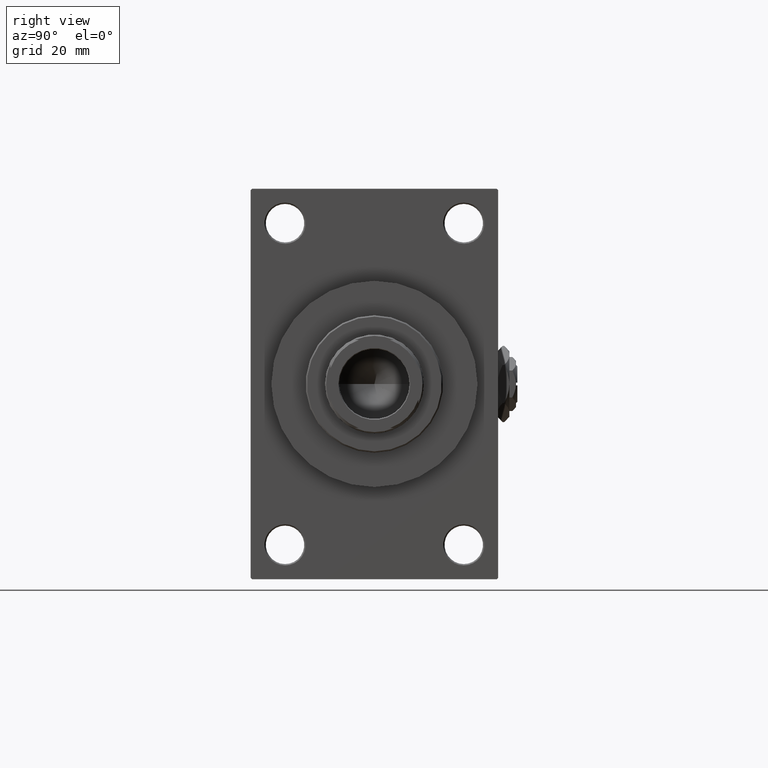
[diagram: clean part render]
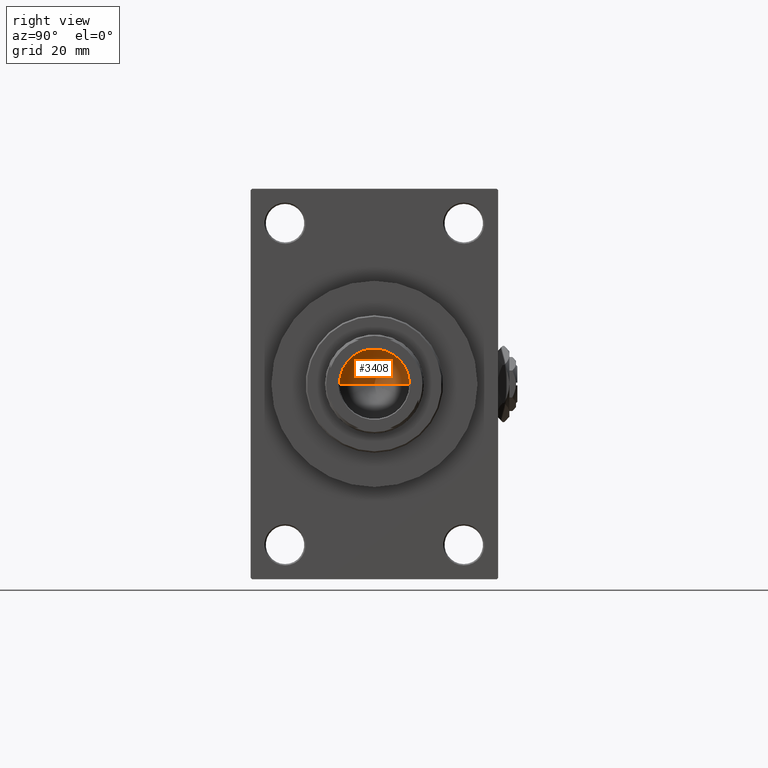
[diagram: same view with one face highlighted and labeled with its STEP entity id]
A machine part, right view. The second image highlights one B-rep face of the part: STEP entity #3408.
In plain terms, the highlighted conical surface has half-angle 59 deg.
Its self-contained STEP definition (entity closure, byte-faithful):
#120 = ORIENTED_EDGE ( 'NONE', *, *, #6463, .F. ) ;
#435 = VERTEX_POINT ( 'NONE', #33786 ) ;
#1939 = AXIS2_PLACEMENT_3D ( 'NONE', #29621, #6858, #17515 ) ;
#2720 = CARTESIAN_POINT ( 'NONE',  ( 0.000000000000000000, 0.000000000000000000, 105.0000000000000284 ) ) ;
#3408 = ADVANCED_FACE ( 'NONE', ( #30179 ), #21475, .F. ) ;
#3911 = CARTESIAN_POINT ( 'NONE',  ( 12.74999999999999112, 0.000000000000000000, 105.0000000000000284 ) ) ;
#6463 = EDGE_CURVE ( 'NONE', #17259, #435, #7882, .T. ) ;
#6858 = DIRECTION ( 'NONE',  ( -0.000000000000000000, -0.000000000000000000, 1.000000000000000000 ) ) ;
#7041 = DIRECTION ( 'NONE',  ( -0.8571673007021117785, 1.049727191138617956E-16, 0.5150380749100550437 ) ) ;
#7882 = LINE ( 'NONE', #3911, #46746 ) ;
#8460 = ORIENTED_EDGE ( 'NONE', *, *, #31413, .T. ) ;
#11103 = EDGE_LOOP ( 'NONE', ( #120, #8460, #20859 ) ) ;
#12044 = CARTESIAN_POINT ( 'NONE',  ( -1.323906893019387300E-14, 0.000000000000000000, 97.33902710739862130 ) ) ;
#15074 = DIRECTION ( 'NONE',  ( 1.000000000000000000, 0.000000000000000000, 0.000000000000000000 ) ) ;
#17259 = VERTEX_POINT ( 'NONE', #12044 ) ;
#17515 = DIRECTION ( 'NONE',  ( 1.000000000000000000, 0.000000000000000000, 0.000000000000000000 ) ) ;
#20859 = ORIENTED_EDGE ( 'NONE', *, *, #40921, .T. ) ;
#21475 = CONICAL_SURFACE ( 'NONE', #33295, 12.74999999999999112, 1.029744258676653423 ) ;
#23277 = CIRCLE ( 'NONE', #1939, 12.74999999999999112 ) ;
#25855 = CARTESIAN_POINT ( 'NONE',  ( -12.74999999999999112, 1.561424668912874125E-15, 105.0000000000000284 ) ) ;
#26908 = VECTOR ( 'NONE', #7041, 1000.000000000000000 ) ;
#26936 = DIRECTION ( 'NONE',  ( 0.8571673007021117785, 0.000000000000000000, 0.5150380749100550437 ) ) ;
#29569 = LINE ( 'NONE', #25855, #26908 ) ;
#29621 = CARTESIAN_POINT ( 'NONE',  ( 0.000000000000000000, 0.000000000000000000, 105.0000000000000284 ) ) ;
#30179 = FACE_OUTER_BOUND ( 'NONE', #11103, .T. ) ;
#30452 = CARTESIAN_POINT ( 'NONE',  ( -12.74999999999999112, 1.561424668912874125E-15, 105.0000000000000284 ) ) ;
#31413 = EDGE_CURVE ( 'NONE', #17259, #42697, #29569, .T. ) ;
#33295 = AXIS2_PLACEMENT_3D ( 'NONE', #2720, #45261, #15074 ) ;
#33786 = CARTESIAN_POINT ( 'NONE',  ( 12.74999999999999112, 0.000000000000000000, 105.0000000000000284 ) ) ;
#40921 = EDGE_CURVE ( 'NONE', #42697, #435, #23277, .T. ) ;
#42697 = VERTEX_POINT ( 'NONE', #30452 ) ;
#45261 = DIRECTION ( 'NONE',  ( -0.000000000000000000, -0.000000000000000000, 1.000000000000000000 ) ) ;
#46746 = VECTOR ( 'NONE', #26936, 1000.000000000000000 ) ;